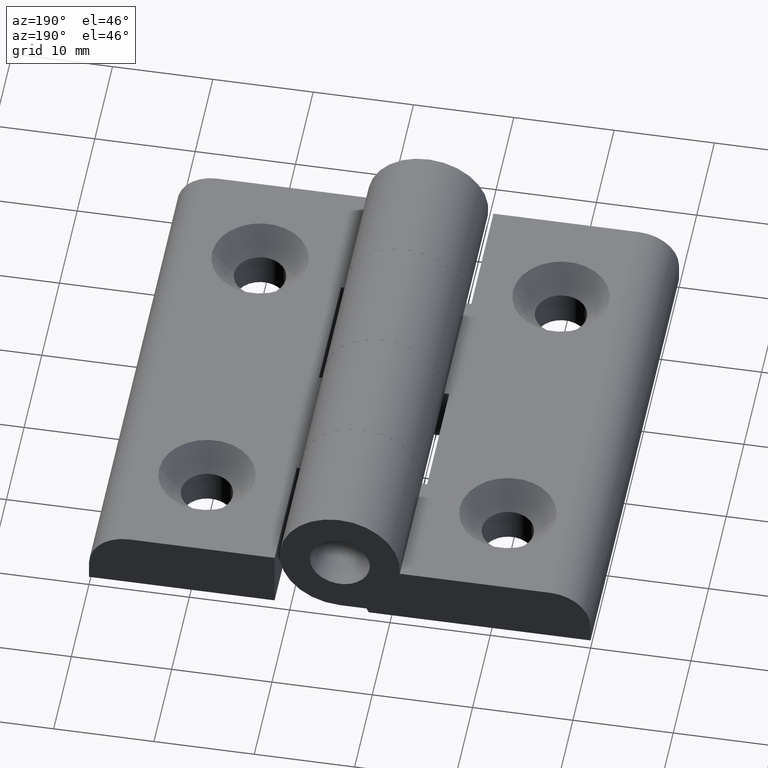
[diagram: clean part render]
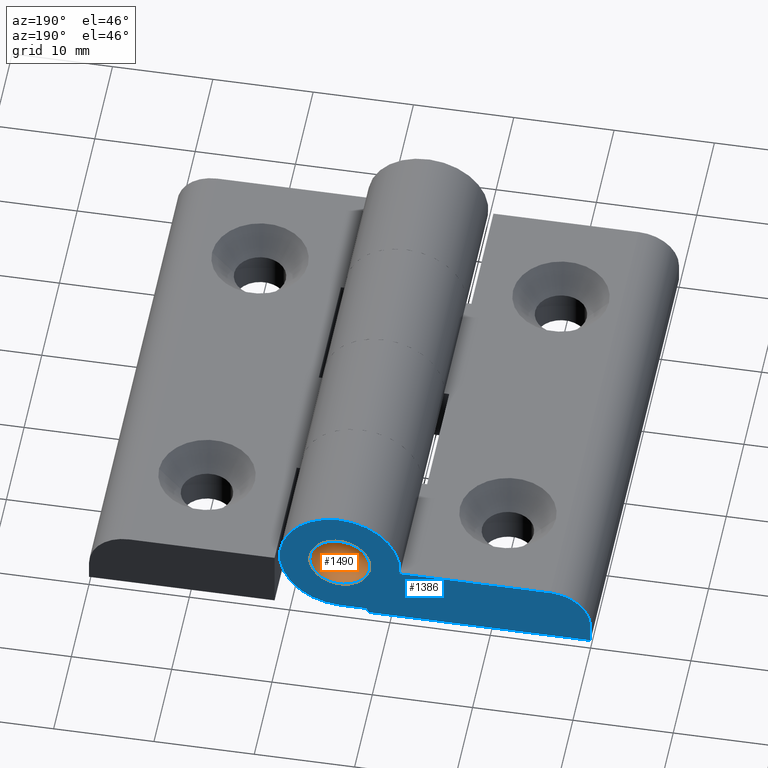
[diagram: same view with the hole feature highlighted: cylindrical wall and planar end face, labeled with their STEP entity ids]
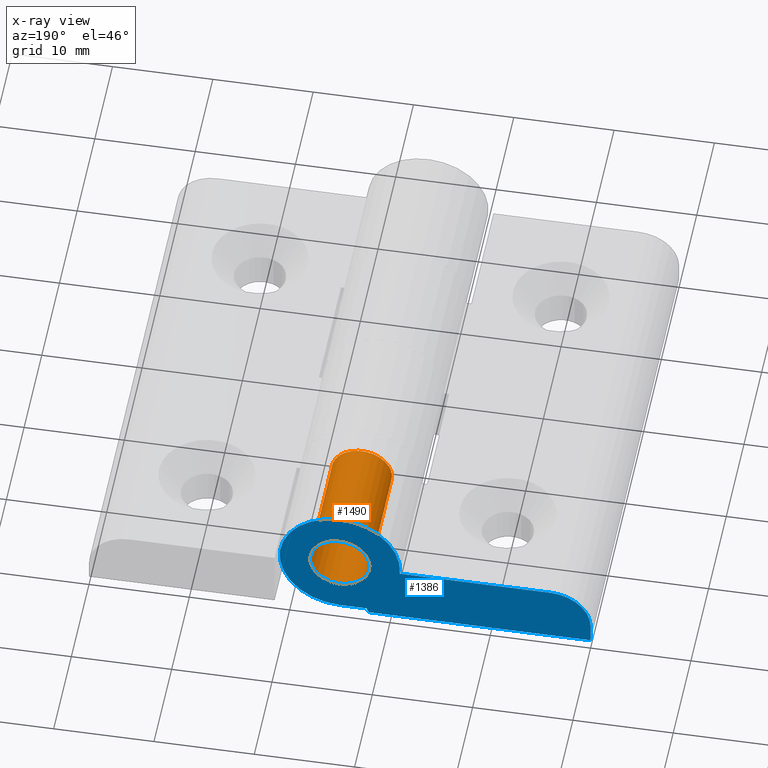
[diagram: x-ray of the same camera — body ghosted, the hole faces saturated]
A machine part, auxiliary view. The highlighted faces form one hole feature of diameter 6 mm: the cylindrical wall (entity #1490, orange) and its adjacent planar end face (entity #1386, blue) — they share a circular edge in the B-rep.
The next image is the same camera in x-ray (body ghosted, the hole faces saturated) — the bore reads through the body.
Wall:
#1366=CARTESIAN_POINT('',(-11.999969999940276,39.999919999840124,6.499986999973769));
#1367=VERTEX_POINT('',#1366);
#1368=CARTESIAN_POINT('',(-17.999969999940276,39.999919999840124,6.499986999973769));
#1369=VERTEX_POINT('',#1368);
#1370=CARTESIAN_POINT('',(-14.999969999940276,39.999919999840124,6.499986999973769));
#1371=DIRECTION('',(1.224647E-016,1.0,-6.123234E-017));
#1372=DIRECTION('',(-1.0,1.224647E-016,-7.498799E-033));
#1373=AXIS2_PLACEMENT_3D('',#1370,#1371,#1372);
#1374=CIRCLE('',#1373,3.0);
#1375=EDGE_CURVE('',#1367,#1369,#1374,.T.);
#1377=CARTESIAN_POINT('',(-14.999969999940276,39.999919999840124,6.499986999973769));
#1378=DIRECTION('',(1.224647E-016,1.0,-6.123234E-017));
#1379=DIRECTION('',(-1.0,1.224647E-016,-7.498799E-033));
#1380=AXIS2_PLACEMENT_3D('',#1377,#1378,#1379);
#1381=CIRCLE('',#1380,3.0);
#1382=EDGE_CURVE('',#1369,#1367,#1381,.T.);
#1456=CARTESIAN_POINT('',(-14.999969999940276,39.999919999840124,6.499986999973769));
#1457=DIRECTION('',(1.224647E-016,1.0,-6.123234E-017));
#1458=DIRECTION('',(-1.0,1.224647E-016,-7.498799E-033));
#1459=AXIS2_PLACEMENT_3D('',#1456,#1457,#1458);
#1460=CYLINDRICAL_SURFACE('',#1459,3.0);
#1461=ORIENTED_EDGE('',*,*,#1382,.T.);
#1462=ORIENTED_EDGE('',*,*,#1375,.T.);
#1463=CARTESIAN_POINT('',(-17.999969999940276,27.499944999889060,6.499986999973769));
#1464=VERTEX_POINT('',#1463);
#1465=CARTESIAN_POINT('',(-17.999969999940276,39.999919999840124,6.499986999973769));
#1466=DIRECTION('',(0.0,-1.0,0.0));
#1467=VECTOR('',#1466,12.499974999951064);
#1468=LINE('',#1465,#1467);
#1469=EDGE_CURVE('',#1369,#1464,#1468,.T.);
#1470=ORIENTED_EDGE('',*,*,#1469,.T.);
#1471=CARTESIAN_POINT('',(-11.999969999940276,27.499944999889060,6.499986999973769));
#1472=VERTEX_POINT('',#1471);
#1473=CARTESIAN_POINT('',(-14.999969999940276,27.499944999889060,6.499986999973769));
#1474=DIRECTION('',(1.224647E-016,1.0,-6.123234E-017));
#1475=DIRECTION('',(-1.0,1.224647E-016,-7.498799E-033));
#1476=AXIS2_PLACEMENT_3D('',#1473,#1474,#1475);
#1477=CIRCLE('',#1476,3.0);
#1478=EDGE_CURVE('',#1472,#1464,#1477,.T.);
#1479=ORIENTED_EDGE('',*,*,#1478,.F.);
#1480=CARTESIAN_POINT('',(-14.999969999940276,27.499944999889060,6.499986999973769));
#1481=DIRECTION('',(1.224647E-016,1.0,-6.123234E-017));
#1482=DIRECTION('',(-1.0,1.224647E-016,-7.498799E-033));
#1483=AXIS2_PLACEMENT_3D('',#1480,#1481,#1482);
#1484=CIRCLE('',#1483,3.0);
#1485=EDGE_CURVE('',#1464,#1472,#1484,.T.);
#1486=ORIENTED_EDGE('',*,*,#1485,.F.);
#1487=ORIENTED_EDGE('',*,*,#1469,.F.);
#1488=EDGE_LOOP('',(#1461,#1462,#1470,#1479,#1486,#1487));
#1489=FACE_OUTER_BOUND('',#1488,.T.);
#1490=ADVANCED_FACE('',(#1489),#1460,.F.);
End face:
#874=CARTESIAN_POINT('',(-35.999928002698198,39.999919999840124,5.999987994638556));
#875=VERTEX_POINT('',#874);
#940=CARTESIAN_POINT('',(-20.979088412760120,39.999919999840124,5.999987994638556));
#941=VERTEX_POINT('',#940);
#948=CARTESIAN_POINT('',(-35.999928002698198,39.999919999840124,5.999987994638556));
#949=DIRECTION('',(1.0,0.0,0.0));
#950=VECTOR('',#949,15.020839589938078);
#951=LINE('',#948,#950);
#952=EDGE_CURVE('',#875,#941,#951,.T.);
#1012=CARTESIAN_POINT('',(-14.999969999940276,39.999919999840124,0.499998999997840));
#1013=VERTEX_POINT('',#1012);
#1020=CARTESIAN_POINT('',(-14.999969999940276,39.999919999840124,6.499986999974223));
#1021=DIRECTION('',(1.224647E-016,1.0,-6.123234E-017));
#1022=DIRECTION('',(-1.0,1.224647E-016,-7.498799E-033));
#1023=AXIS2_PLACEMENT_3D('',#1020,#1021,#1022);
#1024=CIRCLE('',#1023,5.999987999976226);
#1025=EDGE_CURVE('',#941,#1013,#1024,.T.);
#1077=CARTESIAN_POINT('',(-17.665461785186380,39.999919999840124,0.499998999997840));
#1078=VERTEX_POINT('',#1077);
#1085=CARTESIAN_POINT('',(-14.999969999940276,39.999919999840124,0.499998999997840));
#1086=DIRECTION('',(-1.0,0.0,0.0));
#1087=VECTOR('',#1086,2.665491785246104);
#1088=LINE('',#1085,#1087);
#1089=EDGE_CURVE('',#1013,#1078,#1088,.T.);
#1139=CARTESIAN_POINT('',(-17.883998753609376,39.999919999840124,-2.449289E-015));
#1140=VERTEX_POINT('',#1139);
#1147=CARTESIAN_POINT('',(-17.665461785186380,39.999919999840124,0.499998999997840));
#1148=DIRECTION('',(-0.400491799266641,0.0,-0.916300343075440));
#1149=VECTOR('',#1148,0.545671518925403);
#1150=LINE('',#1147,#1149);
#1151=EDGE_CURVE('',#1078,#1140,#1150,.T.);
#1240=CARTESIAN_POINT('',(-39.999919999840586,39.999919999840124,-2.449289E-015));
#1241=VERTEX_POINT('',#1240);
#1248=CARTESIAN_POINT('',(-17.883998753609376,39.999919999840124,-2.449289E-015));
#1249=DIRECTION('',(-1.0,0.0,0.0));
#1250=VECTOR('',#1249,22.115921246231210);
#1251=LINE('',#1248,#1250);
#1252=EDGE_CURVE('',#1140,#1241,#1251,.T.);
#1311=CARTESIAN_POINT('',(-39.999919999840586,39.999919999840124,1.999995997496169));
#1312=VERTEX_POINT('',#1311);
#1319=CARTESIAN_POINT('',(-39.999919999840586,39.999919999840124,-2.449289E-015));
#1320=DIRECTION('',(0.0,0.0,1.0));
#1321=VECTOR('',#1320,1.999995997496171);
#1322=LINE('',#1319,#1321);
#1323=EDGE_CURVE('',#1241,#1312,#1322,.T.);
#1342=CARTESIAN_POINT('',(-35.999928002698198,39.999919999840124,1.999995997496169));
#1343=DIRECTION('',(1.224647E-016,1.0,-6.123234E-017));
#1344=DIRECTION('',(-1.0,1.224647E-016,-7.498799E-033));
#1345=AXIS2_PLACEMENT_3D('',#1342,#1343,#1344);
#1346=CIRCLE('',#1345,3.999991997142388);
#1347=EDGE_CURVE('',#1312,#875,#1346,.T.);
#1352=CARTESIAN_POINT('',(-5.899983464772049,39.999919999840124,-1.250002235270588));
#1353=DIRECTION('',(0.0,1.0,0.0));
#1354=DIRECTION('',(-1.0,0.0,0.0));
#1355=AXIS2_PLACEMENT_3D('',#1352,#1353,#1354);
#1356=PLANE('',#1355);
#1357=ORIENTED_EDGE('',*,*,#952,.T.);
#1358=ORIENTED_EDGE('',*,*,#1025,.T.);
#1359=ORIENTED_EDGE('',*,*,#1089,.T.);
#1360=ORIENTED_EDGE('',*,*,#1151,.T.);
#1361=ORIENTED_EDGE('',*,*,#1252,.T.);
#1362=ORIENTED_EDGE('',*,*,#1323,.T.);
#1363=ORIENTED_EDGE('',*,*,#1347,.T.);
#1364=EDGE_LOOP('',(#1357,#1358,#1359,#1360,#1361,#1362,#1363));
#1365=FACE_OUTER_BOUND('',#1364,.T.);
#1366=CARTESIAN_POINT('',(-11.999969999940276,39.999919999840124,6.499986999973769));
#1367=VERTEX_POINT('',#1366);
#1368=CARTESIAN_POINT('',(-17.999969999940276,39.999919999840124,6.499986999973769));
#1369=VERTEX_POINT('',#1368);
#1370=CARTESIAN_POINT('',(-14.999969999940276,39.999919999840124,6.499986999973769));
#1371=DIRECTION('',(1.224647E-016,1.0,-6.123234E-017));
#1372=DIRECTION('',(-1.0,1.224647E-016,-7.498799E-033));
#1373=AXIS2_PLACEMENT_3D('',#1370,#1371,#1372);
#1374=CIRCLE('',#1373,3.0);
#1375=EDGE_CURVE('',#1367,#1369,#1374,.T.);
#1376=ORIENTED_EDGE('',*,*,#1375,.F.);
#1377=CARTESIAN_POINT('',(-14.999969999940276,39.999919999840124,6.499986999973769));
#1378=DIRECTION('',(1.224647E-016,1.0,-6.123234E-017));
#1379=DIRECTION('',(-1.0,1.224647E-016,-7.498799E-033));
#1380=AXIS2_PLACEMENT_3D('',#1377,#1378,#1379);
#1381=CIRCLE('',#1380,3.0);
#1382=EDGE_CURVE('',#1369,#1367,#1381,.T.);
#1383=ORIENTED_EDGE('',*,*,#1382,.F.);
#1384=EDGE_LOOP('',(#1376,#1383));
#1385=FACE_BOUND('',#1384,.T.);
#1386=ADVANCED_FACE('',(#1365,#1385),#1356,.T.);